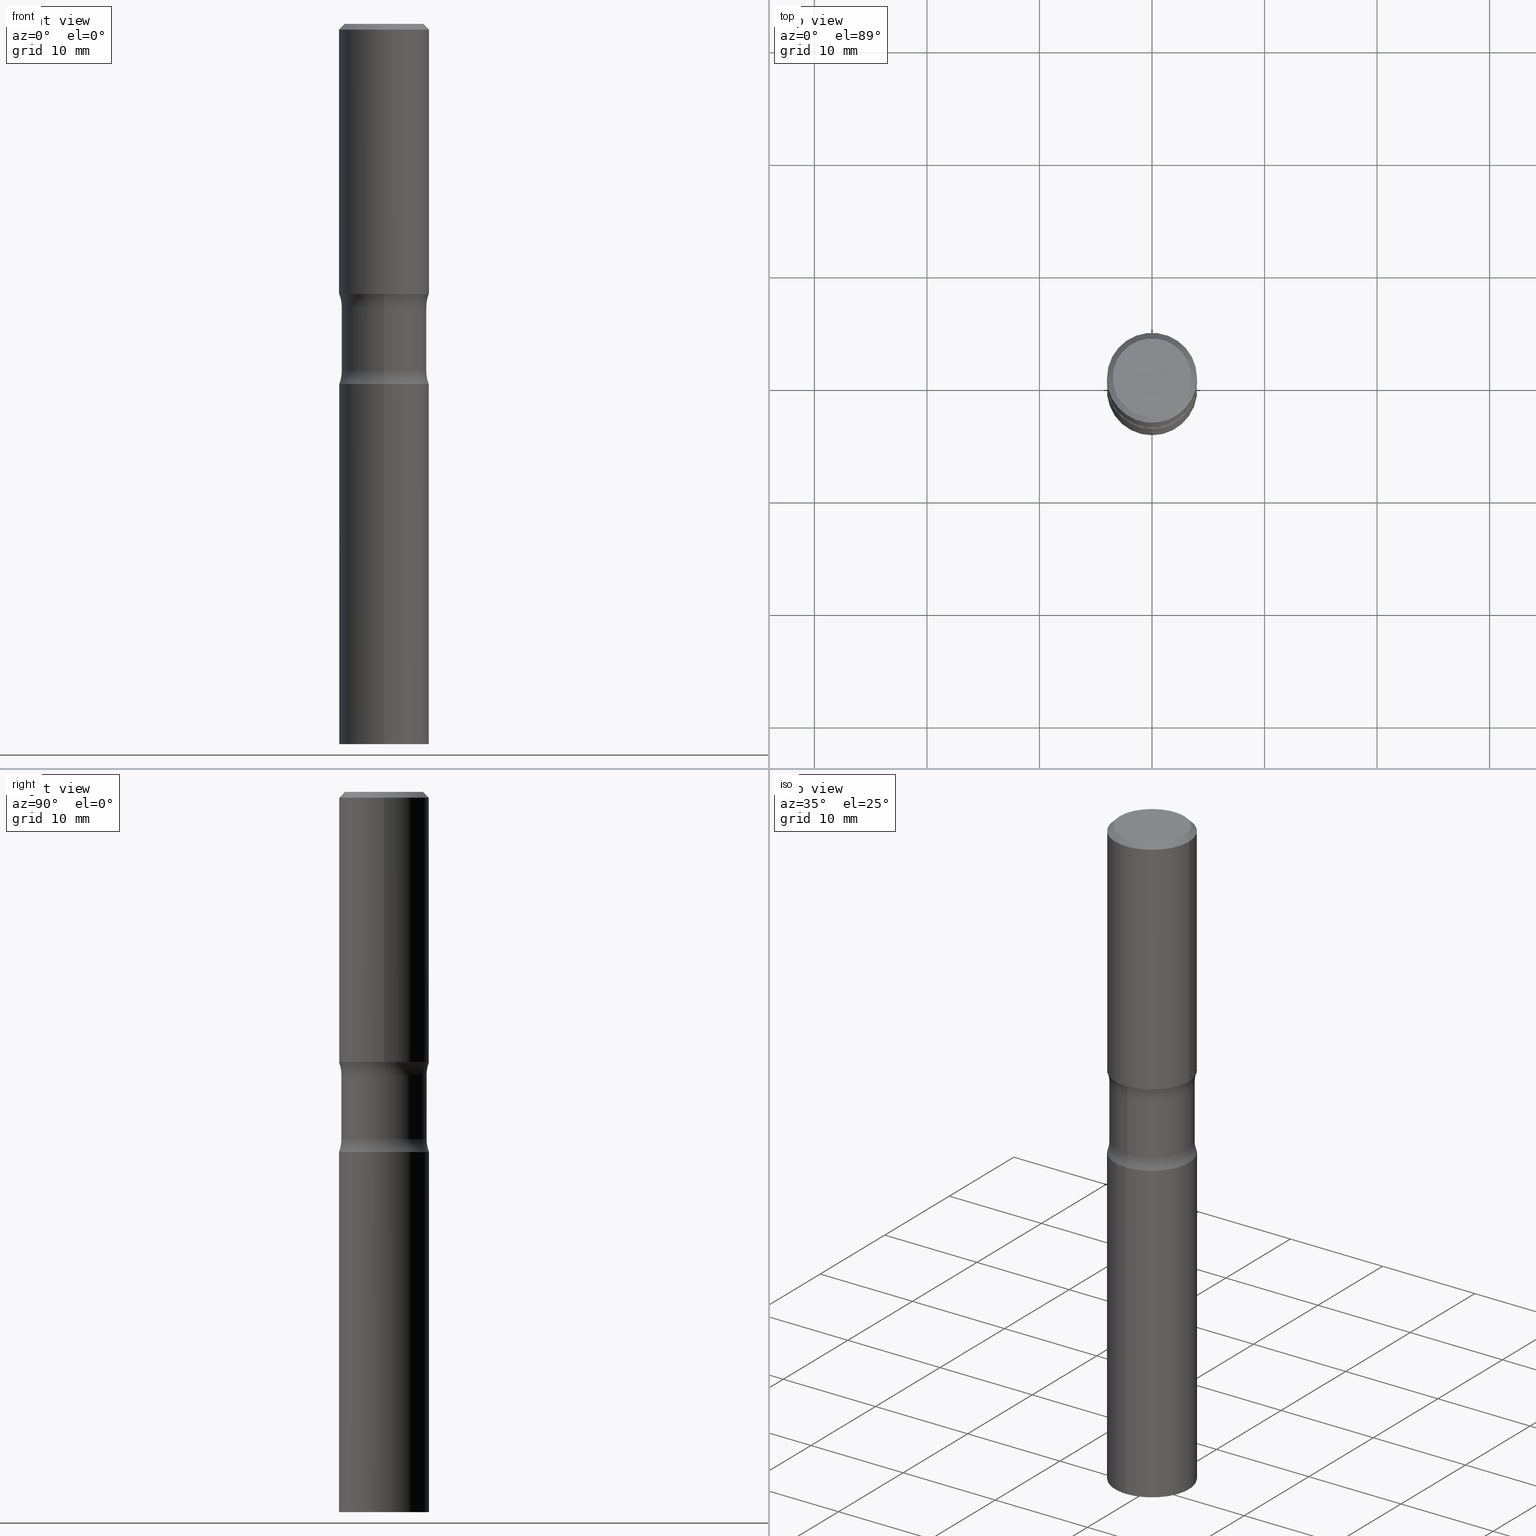
[diagram: canonical four-view strip — front | top / right | iso, engineering-drawing reading convention]
A machine part, canonical four-view strip (front | top / right | iso — engineering-drawing reading convention). The complete STEP part file that produces these views, byte-faithful:
ISO-10303-21;
HEADER;
FILE_DESCRIPTION (( 'STEP AP203' ),
    '1' );
FILE_NAME ('44628.STEP',
    '2024-03-11T13:36:53',
    ( '' ),
    ( '' ),
    'SwSTEP 2.0',
    'SolidWorks 2023',
    '' );
FILE_SCHEMA (( 'CONFIG_CONTROL_DESIGN' ));
ENDSEC;

DATA;
#1 = EDGE_CURVE ( 'NONE', #471, #40, #254, .T. ) ;
#2 = ORIENTED_EDGE ( 'NONE', *, *, #379, .F. ) ;
#3 = CARTESIAN_POINT ( 'NONE',  ( 0.000000000000000000, 0.000000000000000000, 0.000000000000000000 ) ) ;
#4 = ORIENTED_EDGE ( 'NONE', *, *, #285, .F. ) ;
#5 = DIRECTION ( 'NONE',  ( 2.445468806185136597E-29, -3.491481338843145583E-15, -1.000000000000000000 ) ) ;
#6 = AXIS2_PLACEMENT_3D ( 'NONE', #93, #446, #86 ) ;
#7 = FACE_OUTER_BOUND ( 'NONE', #183, .T. ) ;
#8 = EDGE_CURVE ( 'NONE', #312, #109, #9, .T. ) ;
#9 = CIRCLE ( 'NONE', #289, 0.1575000000000000011 ) ;
#10 = ORIENTED_EDGE ( 'NONE', *, *, #373, .F. ) ;
#11 = CARTESIAN_POINT ( 'NONE',  ( 2.966320567988407078E-29, -4.246352965193348549E-15, -1.214592715817431445 ) ) ;
#12 = ADVANCED_FACE ( 'NONE', ( #228 ), #428, .T. ) ;
#13 = DIRECTION ( 'NONE',  ( 6.982962677686264344E-15, 1.000000000000000000, -3.469013325287953293E-15 ) ) ;
#14 = PLANE ( 'NONE',  #417 ) ;
#15 = CARTESIAN_POINT ( 'NONE',  ( 2.966320567988407078E-29, -4.246352965193348549E-15, -1.214592715817431445 ) ) ;
#16 = CARTESIAN_POINT ( 'NONE',  ( -0.1574999999999999178, 1.119104808822157209E-15, -7.747322767151472781E-30 ) ) ;
#17 = CARTESIAN_POINT ( 'NONE',  ( -1.099816621735525160E-15, -0.1575000000000087996, -2.519699999999999385 ) ) ;
#18 = AXIS2_PLACEMENT_3D ( 'NONE', #3, #149, #310 ) ;
#19 = AXIS2_PLACEMENT_3D ( 'NONE', #386, #438, #87 ) ;
#20 = CARTESIAN_POINT ( 'NONE',  ( 2.310723474964335154E-29, -3.299100717072887606E-15, -0.9448999999999998511 ) ) ;
#21 = ADVANCED_FACE ( 'NONE', ( #389 ), #316, .T. ) ;
#22 = DIRECTION ( 'NONE',  ( 6.982962677686265922E-15, 1.000000000000000000, -3.666910058609748863E-15 ) ) ;
#23 = ADVANCED_FACE ( 'NONE', ( #352 ), #14, .F. ) ;
#24 = PERSON_AND_ORGANIZATION ( #135, #288 ) ;
#25 = DIRECTION ( 'NONE',  ( 6.982962677686265133E-15, 1.000000000000000000, -3.459859337779677518E-15 ) ) ;
#26 = APPROVAL ( #28, 'UNSPECIFIED' ) ;
#27 = CIRCLE ( 'NONE', #403, 0.1574999999999999456 ) ;
#28 = APPROVAL_STATUS ( 'not_yet_approved' ) ;
#29 = DIRECTION ( 'NONE',  ( -2.438088387897960049E-29, 3.491481338843145188E-15, 1.000000000000000000 ) ) ;
#30 = CARTESIAN_POINT ( 'NONE',  ( -1.022214201667896631E-15, -0.1490000000000088198, -2.519699999999999385 ) ) ;
#31 = CALENDAR_DATE ( 2024, 11, 3 ) ;
#32 = ORIENTED_EDGE ( 'NONE', *, *, #285, .T. ) ;
#33 = ORIENTED_EDGE ( 'NONE', *, *, #336, .F. ) ;
#34 = FACE_OUTER_BOUND ( 'NONE', #119, .T. ) ;
#35 = PRODUCT_DEFINITION_FORMATION_WITH_SPECIFIED_SOURCE ( 'ANY', '', #150, .NOT_KNOWN. ) ;
#36 = ORIENTED_EDGE ( 'NONE', *, *, #260, .T. ) ;
#37 = DIRECTION ( 'NONE',  ( 2.445468806185136597E-29, -3.491481338843145583E-15, -1.000000000000000000 ) ) ;
#38 = ORIENTED_EDGE ( 'NONE', *, *, #8, .F. ) ;
#39 = ORIENTED_EDGE ( 'NONE', *, *, #252, .F. ) ;
#40 = VERTEX_POINT ( 'NONE', #484 ) ;
#41 = LOCAL_TIME ( 9, 36, 53.00000000000000000, #214 ) ;
#42 = AXIS2_PLACEMENT_3D ( 'NONE', #187, #345, #230 ) ;
#43 = AXIS2_PLACEMENT_3D ( 'NONE', #173, #412, #198 ) ;
#44 = DIRECTION ( 'NONE',  ( 2.438088387897960049E-29, -3.491481338843145188E-15, -1.000000000000000000 ) ) ;
#45 = DIRECTION ( 'NONE',  ( -6.982962677686265922E-15, -1.000000000000000000, 3.494808949473645455E-15 ) ) ;
#46 = DESIGN_CONTEXT ( 'detailed design', #327, 'design' ) ;
#47 = ADVANCED_FACE ( 'NONE', ( #48 ), #50, .T. ) ;
#48 = FACE_OUTER_BOUND ( 'NONE', #347, .T. ) ;
#49 = EDGE_CURVE ( 'NONE', #383, #439, #194, .T. ) ;
#50 = PLANE ( 'NONE',  #19 ) ;
#51 = DIRECTION ( 'NONE',  ( -6.982962677686264344E-15, -1.000000000000000000, 3.469013325287953293E-15 ) ) ;
#52 = AXIS2_PLACEMENT_3D ( 'NONE', #392, #192, #350 ) ;
#53 = AXIS2_PLACEMENT_3D ( 'NONE', #20, #29, #161 ) ;
#54 = DIRECTION ( 'NONE',  ( 2.467550331507131883E-29, -3.459859337779677518E-15, -1.000000000000000000 ) ) ;
#55 = CALENDAR_DATE ( 2024, 11, 3 ) ;
#56 = DIRECTION ( 'NONE',  ( -2.443145148101271508E-29, 3.494808949473645455E-15, 1.000000000000000000 ) ) ;
#57 = DIRECTION ( 'NONE',  ( 0.000000000000000000, 0.000000000000000000, 1.000000000000000000 ) ) ;
#58 = EDGE_CURVE ( 'NONE', #268, #73, #444, .T. ) ;
#59 = LINE ( 'NONE', #16, #500 ) ;
#60 = CARTESIAN_POINT ( 'NONE',  ( 0.1574999999999999178, -1.099816621735586494E-15, 7.679978421878595230E-30 ) ) ;
#61 = LOCAL_TIME ( 9, 36, 53.00000000000000000, #236 ) ;
#62 = DIRECTION ( 'NONE',  ( 2.467550331507131883E-29, -3.459859337779677518E-15, -1.000000000000000000 ) ) ;
#63 =( LENGTH_UNIT ( ) NAMED_UNIT ( * ) SI_UNIT ( $, .METRE. ) );
#64 = PLANE ( 'NONE',  #53 ) ;
#65 = MECHANICAL_CONTEXT ( 'NONE', #301, 'mechanical' ) ;
#66 = APPROVAL_STATUS ( 'not_yet_approved' ) ;
#67 = CARTESIAN_POINT ( 'NONE',  ( 1.913331773686060997E-15, 0.2739999999999965241, -0.9902072841825688698 ) ) ;
#68 = PERSON_AND_ORGANIZATION ( #135, #288 ) ;
#69 = CC_DESIGN_PERSON_AND_ORGANIZATION_ASSIGNMENT ( #207, #362, ( #429 ) ) ;
#70 = AXIS2_PLACEMENT_3D ( 'NONE', #95, #330, #455 ) ;
#71 = EDGE_LOOP ( 'NONE', ( #382, #172, #115, #146 ) ) ;
#72 = DATE_TIME_ROLE ( 'creation_date' ) ;
#73 = VERTEX_POINT ( 'NONE', #321 ) ;
#74 = AXIS2_PLACEMENT_3D ( 'NONE', #354, #250, #364 ) ;
#75 = VECTOR ( 'NONE', #127, 39.37007874015748143 ) ;
#76 = ORIENTED_EDGE ( 'NONE', *, *, #432, .T. ) ;
#77 = ORIENTED_EDGE ( 'NONE', *, *, #493, .F. ) ;
#78 = CC_DESIGN_PERSON_AND_ORGANIZATION_ASSIGNMENT ( #24, #365, ( #35 ) ) ;
#79 = EDGE_CURVE ( 'NONE', #109, #337, #59, .T. ) ;
#80 = EDGE_LOOP ( 'NONE', ( #506, #463, #482, #2 ) ) ;
#81 = ADVANCED_FACE ( 'NONE', ( #134 ), #259, .F. ) ;
#82 = AXIS2_PLACEMENT_3D ( 'NONE', #235, #393, #344 ) ;
#83 = DIRECTION ( 'NONE',  ( -1.000000000000000000, 6.982962677686266711E-15, 0.000000000000000000 ) ) ;
#84 = DIRECTION ( 'NONE',  ( -2.467550331507131603E-29, 3.459859337779677518E-15, 1.000000000000000000 ) ) ;
#85 = CARTESIAN_POINT ( 'NONE',  ( 2.310723474964335154E-29, -3.299100717072887606E-15, -0.9448999999999998511 ) ) ;
#86 = DIRECTION ( 'NONE',  ( 6.982962677686265922E-15, 1.000000000000000000, -3.666910058609747285E-15 ) ) ;
#87 = DIRECTION ( 'NONE',  ( 6.982962677686265922E-15, 1.000000000000000000, -3.494808949473645455E-15 ) ) ;
#88 = CARTESIAN_POINT ( 'NONE',  ( 4.890937612370281041E-31, -6.982962677686302702E-17, -0.02000000000000003511 ) ) ;
#89 = ORIENTED_EDGE ( 'NONE', *, *, #182, .T. ) ;
#90 = AXIS2_PLACEMENT_3D ( 'NONE', #358, #360, #501 ) ;
#91 = CARTESIAN_POINT ( 'NONE',  ( -1.051371318158463896E-15, -0.1490000000000034908, -0.9902072841825673155 ) ) ;
#92 = LINE ( 'NONE', #102, #186 ) ;
#93 = CARTESIAN_POINT ( 'NONE',  ( 6.186738479725476858E-29, -8.761840589176683517E-15, -2.519699999999999829 ) ) ;
#94 = DIRECTION ( 'NONE',  ( 6.982962677686265922E-15, 1.000000000000000000, -3.469013325287954477E-15 ) ) ;
#95 = CARTESIAN_POINT ( 'NONE',  ( 2.421521025125770324E-29, -3.457290254309987085E-15, -0.9902072841825678706 ) ) ;
#96 = CARTESIAN_POINT ( 'NONE',  ( 6.155992829670773666E-29, -8.805870109988744166E-15, -2.519699999999999829 ) ) ;
#97 = DATE_AND_TIME ( #55, #61 ) ;
#98 = DIRECTION ( 'NONE',  ( -6.982962677686265922E-15, -1.000000000000000000, 0.000000000000000000 ) ) ;
#99 = AXIS2_PLACEMENT_3D ( 'NONE', #11, #114, #117 ) ;
#100 = DIRECTION ( 'NONE',  ( -0.7071067811865472397, 2.468850131082253905E-15, -0.7071067811865477948 ) ) ;
#101 = EDGE_CURVE ( 'NONE', #140, #503, #356, .T. ) ;
#102 = CARTESIAN_POINT ( 'NONE',  ( 0.1574999999999998623, -1.150358061425878289E-15, -0.02000000000000003511 ) ) ;
#103 = PERSON_AND_ORGANIZATION ( #135, #288 ) ;
#104 = DIRECTION ( 'NONE',  ( -6.982962677686264344E-15, -1.000000000000000000, 3.469013325287953293E-15 ) ) ;
#105 = AXIS2_PLACEMENT_3D ( 'NONE', #272, #400, #45 ) ;
#106 = SECURITY_CLASSIFICATION_LEVEL ( 'unclassified' ) ;
#107 = ORIENTED_EDGE ( 'NONE', *, *, #252, .T. ) ;
#108 = ORIENTED_EDGE ( 'NONE', *, *, #49, .T. ) ;
#109 = VERTEX_POINT ( 'NONE', #290 ) ;
#110 = CC_DESIGN_DATE_AND_TIME_ASSIGNMENT ( #421, #72, ( #429 ) ) ;
#111 = EDGE_LOOP ( 'NONE', ( #10, #76, #433, #371 ) ) ;
#112 = ORIENTED_EDGE ( 'NONE', *, *, #481, .F. ) ;
#113 = CARTESIAN_POINT ( 'NONE',  ( 9.601573681818602922E-16, 0.1374999999999998446, -4.779444278458817077E-16 ) ) ;
#114 = DIRECTION ( 'NONE',  ( 2.467550331507131883E-29, -3.459859337779677518E-15, -1.000000000000000000 ) ) ;
#115 = ORIENTED_EDGE ( 'NONE', *, *, #425, .T. ) ;
#116 = AXIS2_PLACEMENT_3D ( 'NONE', #244, #57, #199 ) ;
#117 = DIRECTION ( 'NONE',  ( 6.982962677686265922E-15, 1.000000000000000000, -3.666910058609746496E-15 ) ) ;
#118 = DIRECTION ( 'NONE',  ( 1.000000000000000000, -6.982962677686266711E-15, 4.876176775795935793E-29 ) ) ;
#119 = EDGE_LOOP ( 'NONE', ( #181, #262, #36, #138 ) ) ;
#120 = CARTESIAN_POINT ( 'NONE',  ( 1.119104808822157209E-15, 0.1574999999999999456, -5.504324095420989945E-16 ) ) ;
#121 = CC_DESIGN_DATE_AND_TIME_ASSIGNMENT ( #335, #284, ( #415 ) ) ;
#122 = DIRECTION ( 'NONE',  ( 2.467550331507131883E-29, -3.459859337779677518E-15, -1.000000000000000000 ) ) ;
#123 = CIRCLE ( 'NONE', #191, 0.1575000000000000011 ) ;
#124 = CYLINDRICAL_SURFACE ( 'NONE', #6, 0.1490000000000000768 ) ;
#125 = DIRECTION ( 'NONE',  ( 1.000000000000000000, -6.860497997771530774E-15, 4.841186137447993302E-29 ) ) ;
#126 = CARTESIAN_POINT ( 'NONE',  ( 2.412638221772428417E-29, -3.470010934289741969E-15, -0.9902072841825678706 ) ) ;
#127 = DIRECTION ( 'NONE',  ( 2.467550331507132163E-29, -3.459859337779677518E-15, -1.000000000000000000 ) ) ;
#128 = EDGE_CURVE ( 'NONE', #439, #383, #212, .T. ) ;
#129 = CARTESIAN_POINT ( 'NONE',  ( 1.040461438975277855E-15, 0.1489999999999965519, -0.9902072841825684257 ) ) ;
#130 = CALENDAR_DATE ( 2024, 11, 3 ) ;
#131 = CARTESIAN_POINT ( 'NONE',  ( 0.1574999999999998623, -1.150358061425878289E-15, -0.02000000000000003511 ) ) ;
#132 = FACE_OUTER_BOUND ( 'NONE', #263, .T. ) ;
#133 = CIRCLE ( 'NONE', #320, 0.1374999999999998446 ) ;
#134 = FACE_OUTER_BOUND ( 'NONE', #299, .T. ) ;
#135 = PERSON ( 'UNSPECIFIED', 'UNSPECIFIED', 'UNSPECIFIED', ('UNSPECIFIED'), ('UNSPECIFIED'), ('UNSPECIFIED') ) ;
#136 = DIRECTION ( 'NONE',  ( -2.445468806185136597E-29, 3.491481338843145583E-15, 1.000000000000000000 ) ) ;
#137 = PERSON_AND_ORGANIZATION_ROLE ( 'classification_officer' ) ;
#138 = ORIENTED_EDGE ( 'NONE', *, *, #388, .T. ) ;
#139 = EDGE_CURVE ( 'NONE', #140, #436, #225, .T. ) ;
#140 = VERTEX_POINT ( 'NONE', #129 ) ;
#141 = VECTOR ( 'NONE', #238, 39.37007874015748143 ) ;
#142 =( GEOMETRIC_REPRESENTATION_CONTEXT ( 3 ) GLOBAL_UNCERTAINTY_ASSIGNED_CONTEXT ( ( #457 ) ) GLOBAL_UNIT_ASSIGNED_CONTEXT ( ( #496, #165, #281 ) ) REPRESENTATION_CONTEXT ( 'NONE', 'WORKASPACE' ) );
#143 = ORIENTED_EDGE ( 'NONE', *, *, #329, .F. ) ;
#144 = ORIENTED_EDGE ( 'NONE', *, *, #425, .F. ) ;
#145 = CONICAL_SURFACE ( 'NONE', #414, 0.1574999999999998623, 0.7853981633974479459 ) ;
#146 = ORIENTED_EDGE ( 'NONE', *, *, #374, .T. ) ;
#147 = AXIS2_PLACEMENT_3D ( 'NONE', #459, #398, #499 ) ;
#148 = EDGE_LOOP ( 'NONE', ( #306, #431, #475, #144 ) ) ;
#149 = DIRECTION ( 'NONE',  ( -2.445468806185136597E-29, 3.491481338843145583E-15, 1.000000000000000000 ) ) ;
#150 = PRODUCT ( '44628', '44628', '', ( #65 ) ) ;
#151 = ORIENTED_EDGE ( 'NONE', *, *, #101, .T. ) ;
#152 = APPROVAL ( #66, 'UNSPECIFIED' ) ;
#153 = CARTESIAN_POINT ( 'NONE',  ( -1.051371318158457585E-15, -0.1490000000000043789, -1.214592715817431001 ) ) ;
#154 = AXIS2_PLACEMENT_3D ( 'NONE', #442, #84, #227 ) ;
#155 = CARTESIAN_POINT ( 'NONE',  ( 0.000000000000000000, 0.000000000000000000, 0.000000000000000000 ) ) ;
#156 = CLOSED_SHELL ( 'NONE', ( #502, #385, #273, #47 ) ) ;
#157 = EDGE_LOOP ( 'NONE', ( #38, #213 ) ) ;
#158 = CARTESIAN_POINT ( 'NONE',  ( 4.890937612370281041E-31, -6.982962677686302702E-17, -0.02000000000000003511 ) ) ;
#159 = EDGE_LOOP ( 'NONE', ( #223, #108 ) ) ;
#160 = EDGE_CURVE ( 'NONE', #416, #294, #92, .T. ) ;
#161 = DIRECTION ( 'NONE',  ( 1.000000000000000000, -6.982962677686265922E-15, 4.876176775795935793E-29 ) ) ;
#162 = DIRECTION ( 'NONE',  ( 6.982962677686265922E-15, 1.000000000000000000, -3.666910058609747285E-15 ) ) ;
#163 = VECTOR ( 'NONE', #408, 39.37007874015748143 ) ;
#164 = FACE_OUTER_BOUND ( 'NONE', #215, .T. ) ;
#165 =( NAMED_UNIT ( * ) PLANE_ANGLE_UNIT ( ) SI_UNIT ( $, .RADIAN. ) );
#166 = DIRECTION ( 'NONE',  ( 6.982962677686265133E-15, 1.000000000000000000, -3.459859337779677518E-15 ) ) ;
#167 = LINE ( 'NONE', #30, #75 ) ;
#168 = PERSON_AND_ORGANIZATION ( #135, #288 ) ;
#169 = PLANE ( 'NONE',  #147 ) ;
#170 = CIRCLE ( 'NONE', #82, 0.1575000000000000011 ) ;
#171 = AXIS2_PLACEMENT_3D ( 'NONE', #451, #56, #324 ) ;
#172 = ORIENTED_EDGE ( 'NONE', *, *, #58, .F. ) ;
#173 = CARTESIAN_POINT ( 'NONE',  ( -1.043851414335219820E-46, 1.490343170380447200E-32, 4.268512490100411279E-18 ) ) ;
#174 = CYLINDRICAL_SURFACE ( 'NONE', #90, 0.1574999999999999456 ) ;
#175 = ORIENTED_EDGE ( 'NONE', *, *, #481, .T. ) ;
#176 = APPROVAL_DATE_TIME ( #298, #26 ) ;
#177 = EDGE_CURVE ( 'NONE', #361, #416, #380, .T. ) ;
#178 = EDGE_LOOP ( 'NONE', ( #189, #381, #474, #302 ) ) ;
#179 = CC_DESIGN_APPROVAL ( #348, ( #429 ) ) ;
#180 = ORIENTED_EDGE ( 'NONE', *, *, #464, .T. ) ;
#181 = ORIENTED_EDGE ( 'NONE', *, *, #160, .F. ) ;
#182 = EDGE_CURVE ( 'NONE', #140, #40, #278, .T. ) ;
#183 = EDGE_LOOP ( 'NONE', ( #256, #396, #33, #112 ) ) ;
#184 = DIRECTION ( 'NONE',  ( 6.982962677686264344E-15, 1.000000000000000000, -3.469013325287953293E-15 ) ) ;
#185 = DIRECTION ( 'NONE',  ( -2.445468806185136597E-29, 3.491481338843145583E-15, 1.000000000000000000 ) ) ;
#186 = VECTOR ( 'NONE', #203, 39.37007874015748143 ) ;
#187 = CARTESIAN_POINT ( 'NONE',  ( 3.078118572092791150E-29, -4.403109795441844848E-15, -1.259899999999999798 ) ) ;
#188 = DIRECTION ( 'NONE',  ( -2.445468806185136597E-29, 3.491481338843145583E-15, 1.000000000000000000 ) ) ;
#189 = ORIENTED_EDGE ( 'NONE', *, *, #464, .F. ) ;
#190 = DIRECTION ( 'NONE',  ( -1.000000000000000000, 6.982962677686266711E-15, 0.000000000000000000 ) ) ;
#191 = AXIS2_PLACEMENT_3D ( 'NONE', #401, #323, #13 ) ;
#192 = DIRECTION ( 'NONE',  ( 2.467550331507131883E-29, -3.459859337779677518E-15, -1.000000000000000000 ) ) ;
#193 = CARTESIAN_POINT ( 'NONE',  ( 1.119104808822219332E-15, 0.1574999999999955602, -1.259900000000000464 ) ) ;
#194 = CIRCLE ( 'NONE', #42, 0.1574999999999999456 ) ;
#195 = AXIS2_PLACEMENT_3D ( 'NONE', #67, #494, #98 ) ;
#196 = DIRECTION ( 'NONE',  ( -2.445468806185136597E-29, 3.491481338843145583E-15, 1.000000000000000000 ) ) ;
#197 = EDGE_CURVE ( 'NONE', #73, #426, #261, .T. ) ;
#198 = DIRECTION ( 'NONE',  ( 1.000000000000000000, -6.982962677686265922E-15, 4.876173381029105647E-29 ) ) ;
#199 = DIRECTION ( 'NONE',  ( 1.000000000000000000, 0.000000000000000000, 0.000000000000000000 ) ) ;
#200 = DIRECTION ( 'NONE',  ( -2.445468806185136877E-29, 3.491481338843145188E-15, 1.000000000000000000 ) ) ;
#201 = TOROIDAL_SURFACE ( 'NONE', #70, 0.2740000000000000213, 0.1250000000000000000 ) ;
#202 = FACE_OUTER_BOUND ( 'NONE', #80, .T. ) ;
#203 = DIRECTION ( 'NONE',  ( 0.7071067811865472397, -7.319954787623254468E-15, -0.7071067811865477948 ) ) ;
#204 = CARTESIAN_POINT ( 'NONE',  ( 1.040461438975284166E-15, 0.1489999999999958580, -1.214592715817432111 ) ) ;
#205 = CARTESIAN_POINT ( 'NONE',  ( 2.421521025125770324E-29, -3.457290254309987085E-15, -0.9902072841825678706 ) ) ;
#206 = DIRECTION ( 'NONE',  ( -2.445468806185136877E-29, 3.491481338843145188E-15, 1.000000000000000000 ) ) ;
#207 = PERSON_AND_ORGANIZATION ( #135, #288 ) ;
#208 = DIRECTION ( 'NONE',  ( 6.860497997771530774E-15, 1.000000000000000000, 0.000000000000000000 ) ) ;
#209 = CYLINDRICAL_SURFACE ( 'NONE', #251, 0.1490000000000000768 ) ;
#210 = AXIS2_PLACEMENT_3D ( 'NONE', #229, #390, #51 ) ;
#211 = CC_DESIGN_PERSON_AND_ORGANIZATION_ASSIGNMENT ( #328, #137, ( #415 ) ) ;
#212 = CIRCLE ( 'NONE', #171, 0.1574999999999999456 ) ;
#213 = ORIENTED_EDGE ( 'NONE', *, *, #369, .F. ) ;
#214 = COORDINATED_UNIVERSAL_TIME_OFFSET ( 5, 0, .BEHIND. ) ;
#215 = EDGE_LOOP ( 'NONE', ( #420, #255 ) ) ;
#216 = ORIENTED_EDGE ( 'NONE', *, *, #182, .F. ) ;
#217 = CIRCLE ( 'NONE', #99, 0.1490000000000001046 ) ;
#218 = AXIS2_PLACEMENT_3D ( 'NONE', #387, #479, #346 ) ;
#219 = ADVANCED_FACE ( 'NONE', ( #492 ), #270, .F. ) ;
#220 = VERTEX_POINT ( 'NONE', #237 ) ;
#221 = MANIFOLD_SOLID_BREP ( 'Body-Move/Copy2[2]', #456 ) ;
#222 = ORIENTED_EDGE ( 'NONE', *, *, #432, .F. ) ;
#223 = ORIENTED_EDGE ( 'NONE', *, *, #128, .T. ) ;
#224 = CIRCLE ( 'NONE', #497, 0.1490000000000001046 ) ;
#225 = CIRCLE ( 'NONE', #304, 0.1490000000000000213 ) ;
#226 = DIRECTION ( 'NONE',  ( -1.000000000000000000, 6.982962677686265922E-15, -4.876176775795935793E-29 ) ) ;
#227 = DIRECTION ( 'NONE',  ( -6.982962677686265922E-15, -1.000000000000000000, 3.459859337779677518E-15 ) ) ;
#228 = FACE_OUTER_BOUND ( 'NONE', #178, .T. ) ;
#229 = CARTESIAN_POINT ( 'NONE',  ( 6.155992829670773666E-29, -8.805870109988744166E-15, -2.519699999999999829 ) ) ;
#230 = DIRECTION ( 'NONE',  ( -6.982962677686265922E-15, -1.000000000000000000, 3.469013325287954477E-15 ) ) ;
#231 = ADVANCED_FACE ( 'NONE', ( #367 ), #64, .F. ) ;
#232 = DIRECTION ( 'NONE',  ( 1.000000000000000000, -6.982962677686266711E-15, 0.000000000000000000 ) ) ;
#233 = DIRECTION ( 'NONE',  ( 6.860497997771530774E-15, 1.000000000000000000, 0.000000000000000000 ) ) ;
#234 = ORIENTED_EDGE ( 'NONE', *, *, #139, .T. ) ;
#235 = CARTESIAN_POINT ( 'NONE',  ( 2.310723474964335154E-29, -3.299100717072887606E-15, -0.9448999999999998511 ) ) ;
#236 = COORDINATED_UNIVERSAL_TIME_OFFSET ( 5, 0, .BEHIND. ) ;
#237 = CARTESIAN_POINT ( 'NONE',  ( 1.119104808822203752E-15, 0.1574999999999911748, -2.519700000000000273 ) ) ;
#238 = DIRECTION ( 'NONE',  ( -2.443145148101271508E-29, 3.494808949473645455E-15, 1.000000000000000000 ) ) ;
#239 = FACE_OUTER_BOUND ( 'NONE', #159, .T. ) ;
#240 = LINE ( 'NONE', #60, #505 ) ;
#241 = CC_DESIGN_SECURITY_CLASSIFICATION ( #415, ( #35 ) ) ;
#242 = FACE_OUTER_BOUND ( 'NONE', #341, .T. ) ;
#243 = PLANE ( 'NONE',  #469 ) ;
#244 = CARTESIAN_POINT ( 'NONE',  ( 0.000000000000000000, 0.000000000000000000, 0.000000000000000000 ) ) ;
#245 = APPROVAL_ROLE ( '' ) ;
#246 = DIRECTION ( 'NONE',  ( 2.467550331507131883E-29, -3.459859337779677518E-15, -1.000000000000000000 ) ) ;
#247 = CC_DESIGN_PERSON_AND_ORGANIZATION_ASSIGNMENT ( #466, #295, ( #35 ) ) ;
#248 = PERSON_AND_ORGANIZATION_ROLE ( 'design_owner' ) ;
#249 = ADVANCED_FACE ( 'NONE', ( #164 ), #169, .F. ) ;
#250 = DIRECTION ( 'NONE',  ( 2.467550331507131883E-29, -3.459859337779677518E-15, -1.000000000000000000 ) ) ;
#251 = AXIS2_PLACEMENT_3D ( 'NONE', #406, #449, #162 ) ;
#252 = EDGE_CURVE ( 'NONE', #436, #140, #314, .T. ) ;
#253 = SHAPE_DEFINITION_REPRESENTATION ( #435, #422 ) ;
#254 = CIRCLE ( 'NONE', #277, 0.1575000000000000011 ) ;
#255 = ORIENTED_EDGE ( 'NONE', *, *, #1, .F. ) ;
#256 = ORIENTED_EDGE ( 'NONE', *, *, #8, .T. ) ;
#257 = EDGE_LOOP ( 'NONE', ( #339, #477, #175, #318 ) ) ;
#258 = AXIS2_PLACEMENT_3D ( 'NONE', #490, #125, #233 ) ;
#259 = TOROIDAL_SURFACE ( 'NONE', #331, 0.2740000000000000213, 0.1250000000000000000 ) ;
#260 = EDGE_CURVE ( 'NONE', #361, #337, #448, .T. ) ;
#261 = CIRCLE ( 'NONE', #473, 0.1250000000000000000 ) ;
#262 = ORIENTED_EDGE ( 'NONE', *, *, #177, .F. ) ;
#263 = EDGE_LOOP ( 'NONE', ( #4, #340, #89, #296 ) ) ;
#264 = ADVANCED_FACE ( 'NONE', ( #132 ), #201, .F. ) ;
#265 = EDGE_LOOP ( 'NONE', ( #309, #180 ) ) ;
#266 = CARTESIAN_POINT ( 'NONE',  ( -1.099816621735586494E-15, -0.1574999999999999456, 5.504324095420989945E-16 ) ) ;
#267 = LOCAL_TIME ( 9, 36, 53.00000000000000000, #458 ) ;
#268 = VERTEX_POINT ( 'NONE', #287 ) ;
#269 = CYLINDRICAL_SURFACE ( 'NONE', #105, 0.1574999999999999456 ) ;
#270 = TOROIDAL_SURFACE ( 'NONE', #419, 0.2740000000000000213, 0.1250000000000000000 ) ;
#271 = ORIENTED_EDGE ( 'NONE', *, *, #493, .T. ) ;
#272 = CARTESIAN_POINT ( 'NONE',  ( 0.000000000000000000, 0.000000000000000000, 0.000000000000000000 ) ) ;
#273 = ADVANCED_FACE ( 'NONE', ( #239 ), #243, .F. ) ;
#274 = DIRECTION ( 'NONE',  ( 1.000000000000000000, -6.982962677686268288E-15, 0.000000000000000000 ) ) ;
#275 = PLANE ( 'NONE',  #154 ) ;
#276 = VECTOR ( 'NONE', #100, 39.37007874015748143 ) ;
#277 = AXIS2_PLACEMENT_3D ( 'NONE', #486, #54, #184 ) ;
#278 = CIRCLE ( 'NONE', #195, 0.1250000000000000000 ) ;
#279 = CARTESIAN_POINT ( 'NONE',  ( 3.078118572092791150E-29, -4.403109795441844848E-15, -1.259899999999999798 ) ) ;
#280 = DIRECTION ( 'NONE',  ( 6.982962677686265922E-15, 1.000000000000000000, -3.666910058609748863E-15 ) ) ;
#281 =( NAMED_UNIT ( * ) SI_UNIT ( $, .STERADIAN. ) SOLID_ANGLE_UNIT ( ) );
#282 = PRODUCT_RELATED_PRODUCT_CATEGORY ( 'detail', '', ( #150 ) ) ;
#283 = DIRECTION ( 'NONE',  ( 1.000000000000000000, -6.860497997771530774E-15, 4.841186137447993302E-29 ) ) ;
#284 = DATE_TIME_ROLE ( 'classification_date' ) ;
#285 = EDGE_CURVE ( 'NONE', #436, #471, #424, .T. ) ;
#286 = CIRCLE ( 'NONE', #210, 0.1575000000000000011 ) ;
#287 = CARTESIAN_POINT ( 'NONE',  ( 1.099816621735617260E-15, 0.1574999999999955880, -1.259900000000000464 ) ) ;
#288 = ORGANIZATION ( 'UNSPECIFIED', 'UNSPECIFIED', '' ) ;
#289 = AXIS2_PLACEMENT_3D ( 'NONE', #85, #196, #274 ) ;
#290 = CARTESIAN_POINT ( 'NONE',  ( -0.1575000000000000011, -5.653603631027165669E-16, -0.9448999999999998511 ) ) ;
#291 = LENGTH_MEASURE_WITH_UNIT ( LENGTH_MEASURE( 0.02539999999999999897 ), #63 );
#292 = APPROVAL_DATE_TIME ( #495, #152 ) ;
#293 = CARTESIAN_POINT ( 'NONE',  ( -1.099816621735555729E-15, -0.1575000000000043587, -1.259899999999999354 ) ) ;
#294 = VERTEX_POINT ( 'NONE', #131 ) ;
#295 = PERSON_AND_ORGANIZATION_ROLE ( 'creator' ) ;
#296 = ORIENTED_EDGE ( 'NONE', *, *, #297, .T. ) ;
#297 = EDGE_CURVE ( 'NONE', #40, #471, #123, .T. ) ;
#298 = DATE_AND_TIME ( #411, #489 ) ;
#299 = EDGE_LOOP ( 'NONE', ( #39, #32, #430, #216 ) ) ;
#300 = CARTESIAN_POINT ( 'NONE',  ( 4.890937612370281041E-31, -6.982962677686302702E-17, -0.02000000000000003511 ) ) ;
#301 = APPLICATION_CONTEXT ( 'configuration controlled 3d designs of mechanical parts and assemblies' ) ;
#302 = ORIENTED_EDGE ( 'NONE', *, *, #260, .F. ) ;
#303 = ORIENTED_EDGE ( 'NONE', *, *, #305, .T. ) ;
#304 = AXIS2_PLACEMENT_3D ( 'NONE', #359, #122, #22 ) ;
#305 = EDGE_CURVE ( 'NONE', #73, #268, #27, .T. ) ;
#306 = ORIENTED_EDGE ( 'NONE', *, *, #305, .F. ) ;
#307 = DIRECTION ( 'NONE',  ( -2.445468806185136597E-29, 3.491481338843145583E-15, 1.000000000000000000 ) ) ;
#308 = LINE ( 'NONE', #266, #488 ) ;
#309 = ORIENTED_EDGE ( 'NONE', *, *, #177, .T. ) ;
#310 = DIRECTION ( 'NONE',  ( 1.000000000000000000, -6.982962677686266711E-15, 4.876176775795935793E-29 ) ) ;
#311 = APPROVAL_PERSON_ORGANIZATION ( #168, #152, #453 ) ;
#312 = VERTEX_POINT ( 'NONE', #376 ) ;
#313 = CARTESIAN_POINT ( 'NONE',  ( -0.1374999999999998446, 9.950721815702917441E-16, 4.268512490093574228E-18 ) ) ;
#314 = CIRCLE ( 'NONE', #366, 0.1490000000000000213 ) ;
#315 = ADVANCED_FACE ( 'NONE', ( #34 ), #145, .T. ) ;
#316 = CYLINDRICAL_SURFACE ( 'NONE', #357, 0.1574999999999999178 ) ;
#317 = FACE_OUTER_BOUND ( 'NONE', #441, .T. ) ;
#318 = ORIENTED_EDGE ( 'NONE', *, *, #388, .F. ) ;
#319 = DIRECTION ( 'NONE',  ( 6.982962677686265922E-15, 1.000000000000000000, -3.666910058609746496E-15 ) ) ;
#320 = AXIS2_PLACEMENT_3D ( 'NONE', #452, #136, #326 ) ;
#321 = CARTESIAN_POINT ( 'NONE',  ( -1.080528434648985408E-15, -0.1575000000000043865, -1.259899999999999354 ) ) ;
#322 = APPROVAL_ROLE ( '' ) ;
#323 = DIRECTION ( 'NONE',  ( 2.467550331507131883E-29, -3.459859337779677518E-15, -1.000000000000000000 ) ) ;
#324 = DIRECTION ( 'NONE',  ( -6.982962677686265922E-15, -1.000000000000000000, 3.469013325287954477E-15 ) ) ;
#325 = CARTESIAN_POINT ( 'NONE',  ( -0.1574999999999998623, 1.029986994958722999E-15, -0.02000000000000003511 ) ) ;
#326 = DIRECTION ( 'NONE',  ( 1.000000000000000000, -6.982962677686265922E-15, 4.876173381029105647E-29 ) ) ;
#327 = APPLICATION_CONTEXT ( 'configuration controlled 3d designs of mechanical parts and assemblies' ) ;
#328 = PERSON_AND_ORGANIZATION ( #135, #288 ) ;
#329 = EDGE_CURVE ( 'NONE', #426, #503, #224, .T. ) ;
#330 = DIRECTION ( 'NONE',  ( 2.467550331507131883E-29, -3.459859337779677518E-15, -1.000000000000000000 ) ) ;
#331 = AXIS2_PLACEMENT_3D ( 'NONE', #205, #246, #25 ) ;
#332 = CC_DESIGN_PERSON_AND_ORGANIZATION_ASSIGNMENT ( #103, #248, ( #150 ) ) ;
#333 = CARTESIAN_POINT ( 'NONE',  ( 2.970248598751217495E-29, -4.240727801571377974E-15, -1.214592715817431667 ) ) ;
#334 = DIRECTION ( 'NONE',  ( -2.443145148101271508E-29, 3.494808949473645455E-15, 1.000000000000000000 ) ) ;
#335 = DATE_AND_TIME ( #130, #41 ) ;
#336 = EDGE_CURVE ( 'NONE', #294, #337, #478, .T. ) ;
#337 = VERTEX_POINT ( 'NONE', #487 ) ;
#338 = CC_DESIGN_APPROVAL ( #152, ( #415 ) ) ;
#339 = ORIENTED_EDGE ( 'NONE', *, *, #79, .F. ) ;
#340 = ORIENTED_EDGE ( 'NONE', *, *, #139, .F. ) ;
#341 = EDGE_LOOP ( 'NONE', ( #234, #271, #375, #508 ) ) ;
#342 = CARTESIAN_POINT ( 'NONE',  ( 4.890937612370281041E-31, -6.982962677686302702E-17, -0.02000000000000003511 ) ) ;
#343 = ADVANCED_FACE ( 'NONE', ( #317 ), #124, .T. ) ;
#344 = DIRECTION ( 'NONE',  ( 1.000000000000000000, -6.982962677686268288E-15, 0.000000000000000000 ) ) ;
#345 = DIRECTION ( 'NONE',  ( -2.443145148101271508E-29, 3.494808949473645455E-15, 1.000000000000000000 ) ) ;
#346 = DIRECTION ( 'NONE',  ( -6.982962677686265922E-15, -1.000000000000000000, 0.000000000000000000 ) ) ;
#347 = EDGE_LOOP ( 'NONE', ( #377, #222 ) ) ;
#348 = APPROVAL ( #460, 'UNSPECIFIED' ) ;
#349 = DIRECTION ( 'NONE',  ( -2.443145148101271508E-29, 3.494808949473645455E-15, 1.000000000000000000 ) ) ;
#350 = DIRECTION ( 'NONE',  ( 6.982962677686265922E-15, 1.000000000000000000, -3.469013325287954477E-15 ) ) ;
#351 = FACE_OUTER_BOUND ( 'NONE', #111, .T. ) ;
#352 = FACE_OUTER_BOUND ( 'NONE', #265, .T. ) ;
#353 = CARTESIAN_POINT ( 'NONE',  ( 1.040461438975315918E-15, 0.1489999999999913061, -2.519700000000000273 ) ) ;
#354 = CARTESIAN_POINT ( 'NONE',  ( 2.970248598751217495E-29, -4.240727801571377974E-15, -1.214592715817431667 ) ) ;
#355 = TOROIDAL_SURFACE ( 'NONE', #74, 0.2740000000000000213, 0.1250000000000000000 ) ;
#356 = LINE ( 'NONE', #353, #163 ) ;
#357 = AXIS2_PLACEMENT_3D ( 'NONE', #155, #307, #118 ) ;
#358 = CARTESIAN_POINT ( 'NONE',  ( 0.000000000000000000, 0.000000000000000000, 0.000000000000000000 ) ) ;
#359 = CARTESIAN_POINT ( 'NONE',  ( 2.412638221772428417E-29, -3.470010934289741969E-15, -0.9902072841825678706 ) ) ;
#360 = DIRECTION ( 'NONE',  ( -2.443145148101271508E-29, 3.494808949473645455E-15, 1.000000000000000000 ) ) ;
#361 = VERTEX_POINT ( 'NONE', #313 ) ;
#362 = PERSON_AND_ORGANIZATION_ROLE ( 'creator' ) ;
#363 = CARTESIAN_POINT ( 'NONE',  ( 3.081046148912652946E-29, -4.398917338808479031E-15, -1.259899999999999798 ) ) ;
#364 = DIRECTION ( 'NONE',  ( 6.982962677686265133E-15, 1.000000000000000000, -3.459859337779677518E-15 ) ) ;
#365 = PERSON_AND_ORGANIZATION_ROLE ( 'design_supplier' ) ;
#366 = AXIS2_PLACEMENT_3D ( 'NONE', #126, #405, #280 ) ;
#367 = FACE_OUTER_BOUND ( 'NONE', #157, .T. ) ;
#368 = CARTESIAN_POINT ( 'NONE',  ( -1.080528434648993100E-15, -0.1575000000000033040, -0.9448999999999989630 ) ) ;
#369 = EDGE_CURVE ( 'NONE', #109, #312, #170, .T. ) ;
#370 = CALENDAR_DATE ( 2024, 11, 3 ) ;
#371 = ORIENTED_EDGE ( 'NONE', *, *, #49, .F. ) ;
#372 = PERSON_AND_ORGANIZATION ( #135, #288 ) ;
#373 = EDGE_CURVE ( 'NONE', #220, #383, #437, .T. ) ;
#374 = EDGE_CURVE ( 'NONE', #503, #426, #217, .T. ) ;
#375 = ORIENTED_EDGE ( 'NONE', *, *, #374, .F. ) ;
#376 = CARTESIAN_POINT ( 'NONE',  ( 0.1575000000000000011, -4.398917338808475087E-15, -0.9448999999999998511 ) ) ;
#377 = ORIENTED_EDGE ( 'NONE', *, *, #468, .F. ) ;
#378 = AXIS2_PLACEMENT_3D ( 'NONE', #158, #188, #397 ) ;
#379 = EDGE_CURVE ( 'NONE', #467, #439, #308, .T. ) ;
#380 = CIRCLE ( 'NONE', #43, 0.1374999999999998446 ) ;
#381 = ORIENTED_EDGE ( 'NONE', *, *, #160, .T. ) ;
#382 = ORIENTED_EDGE ( 'NONE', *, *, #197, .F. ) ;
#383 = VERTEX_POINT ( 'NONE', #193 ) ;
#384 = CIRCLE ( 'NONE', #395, 0.1575000000000000011 ) ;
#385 = ADVANCED_FACE ( 'NONE', ( #351 ), #269, .T. ) ;
#386 = CARTESIAN_POINT ( 'NONE',  ( 6.161847750944688229E-29, -8.797485529483074550E-15, -2.519699999999999829 ) ) ;
#387 = CARTESIAN_POINT ( 'NONE',  ( 1.913331773686066519E-15, 0.2739999999999958025, -1.214592715817432556 ) ) ;
#388 = EDGE_CURVE ( 'NONE', #337, #294, #504, .T. ) ;
#389 = FACE_OUTER_BOUND ( 'NONE', #257, .T. ) ;
#390 = DIRECTION ( 'NONE',  ( -2.443145148101271508E-29, 3.494808949473645455E-15, 1.000000000000000000 ) ) ;
#391 = MANIFOLD_SOLID_BREP ( 'Body-Move/Copy2[1]', #156 ) ;
#392 = CARTESIAN_POINT ( 'NONE',  ( 3.078118572092791150E-29, -4.403109795441844848E-15, -1.259899999999999798 ) ) ;
#393 = DIRECTION ( 'NONE',  ( -2.445468806185136597E-29, 3.491481338843145583E-15, 1.000000000000000000 ) ) ;
#394 = AXIS2_PLACEMENT_3D ( 'NONE', #88, #185, #232 ) ;
#395 = AXIS2_PLACEMENT_3D ( 'NONE', #96, #334, #104 ) ;
#396 = ORIENTED_EDGE ( 'NONE', *, *, #79, .T. ) ;
#397 = DIRECTION ( 'NONE',  ( 1.000000000000000000, -6.982962677686266711E-15, 0.000000000000000000 ) ) ;
#398 = DIRECTION ( 'NONE',  ( 2.467550331507131603E-29, -3.459859337779677518E-15, -1.000000000000000000 ) ) ;
#399 = MANIFOLD_SOLID_BREP ( 'Body-Move/Copy2[4]', #465 ) ;
#400 = DIRECTION ( 'NONE',  ( -2.443145148101271508E-29, 3.494808949473645455E-15, 1.000000000000000000 ) ) ;
#401 = CARTESIAN_POINT ( 'NONE',  ( 2.300840217668044065E-29, -3.313254104041245670E-15, -0.9448999999999995181 ) ) ;
#402 = FACE_OUTER_BOUND ( 'NONE', #148, .T. ) ;
#403 = AXIS2_PLACEMENT_3D ( 'NONE', #279, #447, #94 ) ;
#404 = APPROVAL_PERSON_ORGANIZATION ( #68, #348, #322 ) ;
#405 = DIRECTION ( 'NONE',  ( 2.467550331507131883E-29, -3.459859337779677518E-15, -1.000000000000000000 ) ) ;
#406 = CARTESIAN_POINT ( 'NONE',  ( 6.186738479725476858E-29, -8.761840589176683517E-15, -2.519699999999999829 ) ) ;
#407 = APPROVAL_DATE_TIME ( #97, #348 ) ;
#408 = DIRECTION ( 'NONE',  ( 2.467550331507132163E-29, -3.459859337779677518E-15, -1.000000000000000000 ) ) ;
#409 = ADVANCED_FACE ( 'NONE', ( #7 ), #485, .T. ) ;
#410 = APPLICATION_PROTOCOL_DEFINITION ( 'international standard', 'config_control_design', 1994, #301 ) ;
#411 = CALENDAR_DATE ( 2024, 11, 3 ) ;
#412 = DIRECTION ( 'NONE',  ( -2.445468806185136597E-29, 3.491481338843145583E-15, 1.000000000000000000 ) ) ;
#413 = APPLICATION_PROTOCOL_DEFINITION ( 'international standard', 'config_control_design', 1994, #327 ) ;
#414 = AXIS2_PLACEMENT_3D ( 'NONE', #300, #37, #190 ) ;
#415 = SECURITY_CLASSIFICATION ( '', '', #106 ) ;
#416 = VERTEX_POINT ( 'NONE', #434 ) ;
#417 = AXIS2_PLACEMENT_3D ( 'NONE', #113, #44, #226 ) ;
#418 = ADVANCED_FACE ( 'NONE', ( #483 ), #275, .F. ) ;
#419 = AXIS2_PLACEMENT_3D ( 'NONE', #333, #62, #166 ) ;
#420 = ORIENTED_EDGE ( 'NONE', *, *, #297, .F. ) ;
#421 = DATE_AND_TIME ( #31, #267 ) ;
#422 = ADVANCED_BREP_SHAPE_REPRESENTATION ( '44628', ( #391, #221, #399, #116 ), #142 ) ;
#423 = ORIENTED_EDGE ( 'NONE', *, *, #58, .T. ) ;
#424 = CIRCLE ( 'NONE', #258, 0.1250000000000000000 ) ;
#425 = EDGE_CURVE ( 'NONE', #268, #503, #454, .T. ) ;
#426 = VERTEX_POINT ( 'NONE', #153 ) ;
#427 = CC_DESIGN_APPROVAL ( #26, ( #35 ) ) ;
#428 = CONICAL_SURFACE ( 'NONE', #491, 0.1574999999999998623, 0.7853981633974479459 ) ;
#429 = PRODUCT_DEFINITION ( 'UNKNOWN', '', #35, #46 ) ;
#430 = ORIENTED_EDGE ( 'NONE', *, *, #1, .T. ) ;
#431 = ORIENTED_EDGE ( 'NONE', *, *, #197, .T. ) ;
#432 = EDGE_CURVE ( 'NONE', #220, #467, #286, .T. ) ;
#433 = ORIENTED_EDGE ( 'NONE', *, *, #379, .T. ) ;
#434 = CARTESIAN_POINT ( 'NONE',  ( 0.1374999999999998446, -1.046838268059731505E-15, 4.268512490107428597E-18 ) ) ;
#435 = PRODUCT_DEFINITION_SHAPE ( 'NONE', 'NONE',  #429 ) ;
#436 = VERTEX_POINT ( 'NONE', #91 ) ;
#437 = LINE ( 'NONE', #120, #141 ) ;
#438 = DIRECTION ( 'NONE',  ( 2.443145148101270947E-29, -3.494808949473645455E-15, -1.000000000000000000 ) ) ;
#439 = VERTEX_POINT ( 'NONE', #293 ) ;
#440 = ADVANCED_FACE ( 'NONE', ( #402 ), #355, .F. ) ;
#441 = EDGE_LOOP ( 'NONE', ( #77, #107, #151, #143 ) ) ;
#442 = CARTESIAN_POINT ( 'NONE',  ( 3.081046148912652946E-29, -4.398917338808479031E-15, -1.259899999999999798 ) ) ;
#443 = DIRECTION ( 'NONE',  ( 2.443145148101270947E-29, -3.494808949473645455E-15, -1.000000000000000000 ) ) ;
#444 = CIRCLE ( 'NONE', #52, 0.1574999999999999456 ) ;
#445 = CARTESIAN_POINT ( 'NONE',  ( -1.879776451389370025E-15, -0.2740000000000042957, -1.214592715817430779 ) ) ;
#446 = DIRECTION ( 'NONE',  ( 2.467550331507131883E-29, -3.459859337779677518E-15, -1.000000000000000000 ) ) ;
#447 = DIRECTION ( 'NONE',  ( 2.467550331507131883E-29, -3.459859337779677518E-15, -1.000000000000000000 ) ) ;
#448 = LINE ( 'NONE', #325, #276 ) ;
#449 = DIRECTION ( 'NONE',  ( 2.467550331507131883E-29, -3.459859337779677518E-15, -1.000000000000000000 ) ) ;
#450 = DIRECTION ( 'NONE',  ( 6.982962677686265922E-15, 1.000000000000000000, -3.494808949473645455E-15 ) ) ;
#451 = CARTESIAN_POINT ( 'NONE',  ( 3.078118572092791150E-29, -4.403109795441844848E-15, -1.259899999999999798 ) ) ;
#452 = CARTESIAN_POINT ( 'NONE',  ( -1.043851414335219820E-46, 1.490343170380447200E-32, 4.268512490100411279E-18 ) ) ;
#453 = APPROVAL_ROLE ( '' ) ;
#454 = CIRCLE ( 'NONE', #218, 0.1250000000000000000 ) ;
#455 = DIRECTION ( 'NONE',  ( 6.982962677686265133E-15, 1.000000000000000000, -3.459859337779677518E-15 ) ) ;
#456 = CLOSED_SHELL ( 'NONE', ( #409, #12, #315, #23, #231, #21 ) ) ;
#457 = UNCERTAINTY_MEASURE_WITH_UNIT (LENGTH_MEASURE( 1.000000000000000082E-05 ), #496, 'distance_accuracy_value', 'NONE');
#458 = COORDINATED_UNIVERSAL_TIME_OFFSET ( 5, 0, .BEHIND. ) ;
#459 = CARTESIAN_POINT ( 'NONE',  ( 2.882954692413977467E-29, -2.479633044306741412E-15, -0.9448999999999998511 ) ) ;
#460 = APPROVAL_STATUS ( 'not_yet_approved' ) ;
#461 = ADVANCED_FACE ( 'NONE', ( #242 ), #209, .T. ) ;
#462 = COORDINATED_UNIVERSAL_TIME_OFFSET ( 5, 0, .BEHIND. ) ;
#463 = ORIENTED_EDGE ( 'NONE', *, *, #373, .T. ) ;
#464 = EDGE_CURVE ( 'NONE', #416, #361, #133, .T. ) ;
#465 = CLOSED_SHELL ( 'NONE', ( #461, #440, #81, #264, #249, #418, #219, #343 ) ) ;
#466 = PERSON_AND_ORGANIZATION ( #135, #288 ) ;
#467 = VERTEX_POINT ( 'NONE', #17 ) ;
#468 = EDGE_CURVE ( 'NONE', #467, #220, #384, .T. ) ;
#469 = AXIS2_PLACEMENT_3D ( 'NONE', #363, #443, #450 ) ;
#470 = DIMENSIONAL_EXPONENTS ( 1.000000000000000000, 0.000000000000000000, 0.000000000000000000, 0.000000000000000000, 0.000000000000000000, 0.000000000000000000, 0.000000000000000000 ) ;
#471 = VERTEX_POINT ( 'NONE', #368 ) ;
#472 = APPROVAL_PERSON_ORGANIZATION ( #372, #26, #245 ) ;
#473 = AXIS2_PLACEMENT_3D ( 'NONE', #445, #283, #208 ) ;
#474 = ORIENTED_EDGE ( 'NONE', *, *, #336, .T. ) ;
#475 = ORIENTED_EDGE ( 'NONE', *, *, #329, .T. ) ;
#476 = DIRECTION ( 'NONE',  ( 2.467550331507131883E-29, -3.459859337779677518E-15, -1.000000000000000000 ) ) ;
#477 = ORIENTED_EDGE ( 'NONE', *, *, #369, .T. ) ;
#478 = CIRCLE ( 'NONE', #394, 0.1574999999999998623 ) ;
#479 = DIRECTION ( 'NONE',  ( -1.000000000000000000, 6.982962677686265922E-15, -4.883557194083112340E-29 ) ) ;
#480 = LOCAL_TIME ( 9, 36, 53.00000000000000000, #498 ) ;
#481 = EDGE_CURVE ( 'NONE', #312, #294, #240, .T. ) ;
#482 = ORIENTED_EDGE ( 'NONE', *, *, #128, .F. ) ;
#483 = FACE_OUTER_BOUND ( 'NONE', #507, .T. ) ;
#484 = CARTESIAN_POINT ( 'NONE',  ( 1.099816621735609963E-15, 0.1574999999999967260, -0.9449000000000000732 ) ) ;
#485 = CYLINDRICAL_SURFACE ( 'NONE', #18, 0.1574999999999999178 ) ;
#486 = CARTESIAN_POINT ( 'NONE',  ( 2.300840217668044065E-29, -3.313254104041245670E-15, -0.9448999999999995181 ) ) ;
#487 = CARTESIAN_POINT ( 'NONE',  ( -0.1574999999999998623, 1.029986994958722999E-15, -0.02000000000000003511 ) ) ;
#488 = VECTOR ( 'NONE', #349, 39.37007874015748143 ) ;
#489 = LOCAL_TIME ( 9, 36, 53.00000000000000000, #462 ) ;
#490 = CARTESIAN_POINT ( 'NONE',  ( -1.879776451389375152E-15, -0.2740000000000034630, -0.9902072841825668714 ) ) ;
#491 = AXIS2_PLACEMENT_3D ( 'NONE', #342, #5, #83 ) ;
#492 = FACE_OUTER_BOUND ( 'NONE', #71, .T. ) ;
#493 = EDGE_CURVE ( 'NONE', #436, #426, #167, .T. ) ;
#494 = DIRECTION ( 'NONE',  ( -1.000000000000000000, 6.982962677686265922E-15, -4.883557194083112340E-29 ) ) ;
#495 = DATE_AND_TIME ( #370, #480 ) ;
#496 =( CONVERSION_BASED_UNIT ( 'INCH', #291 ) LENGTH_UNIT ( ) NAMED_UNIT ( #470 ) );
#497 = AXIS2_PLACEMENT_3D ( 'NONE', #15, #476, #319 ) ;
#498 = COORDINATED_UNIVERSAL_TIME_OFFSET ( 5, 0, .BEHIND. ) ;
#499 = DIRECTION ( 'NONE',  ( 6.982962677686265922E-15, 1.000000000000000000, -3.459859337779677518E-15 ) ) ;
#500 = VECTOR ( 'NONE', #200, 39.37007874015748143 ) ;
#501 = DIRECTION ( 'NONE',  ( -6.982962677686265922E-15, -1.000000000000000000, 3.494808949473645455E-15 ) ) ;
#502 = ADVANCED_FACE ( 'NONE', ( #202 ), #174, .T. ) ;
#503 = VERTEX_POINT ( 'NONE', #204 ) ;
#504 = CIRCLE ( 'NONE', #378, 0.1574999999999998623 ) ;
#505 = VECTOR ( 'NONE', #206, 39.37007874015748143 ) ;
#506 = ORIENTED_EDGE ( 'NONE', *, *, #468, .T. ) ;
#507 = EDGE_LOOP ( 'NONE', ( #423, #303 ) ) ;
#508 = ORIENTED_EDGE ( 'NONE', *, *, #101, .F. ) ;
ENDSEC;
END-ISO-10303-21;
